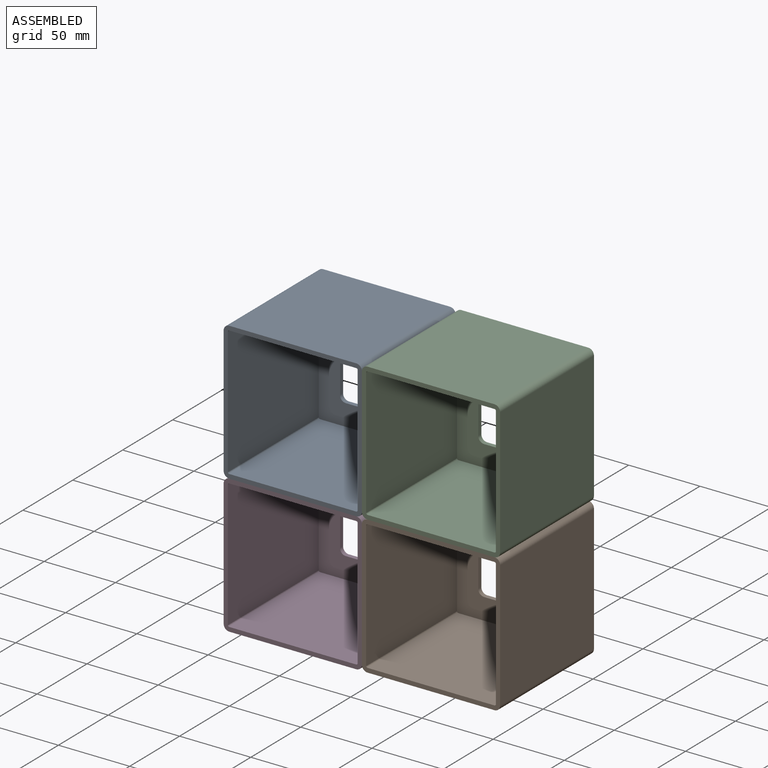
[diagram: assembled view]
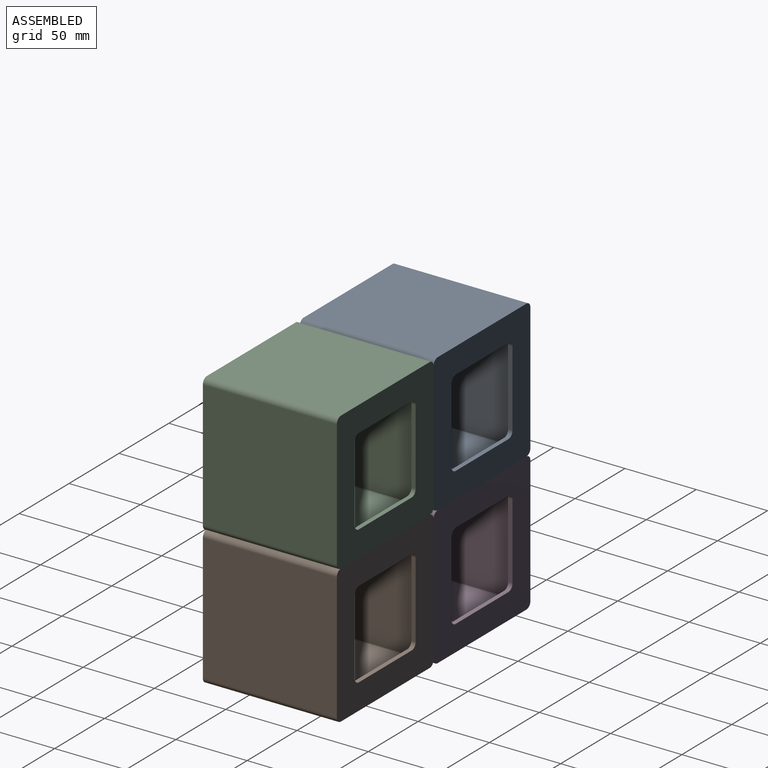
[diagram: assembled view, second angle]
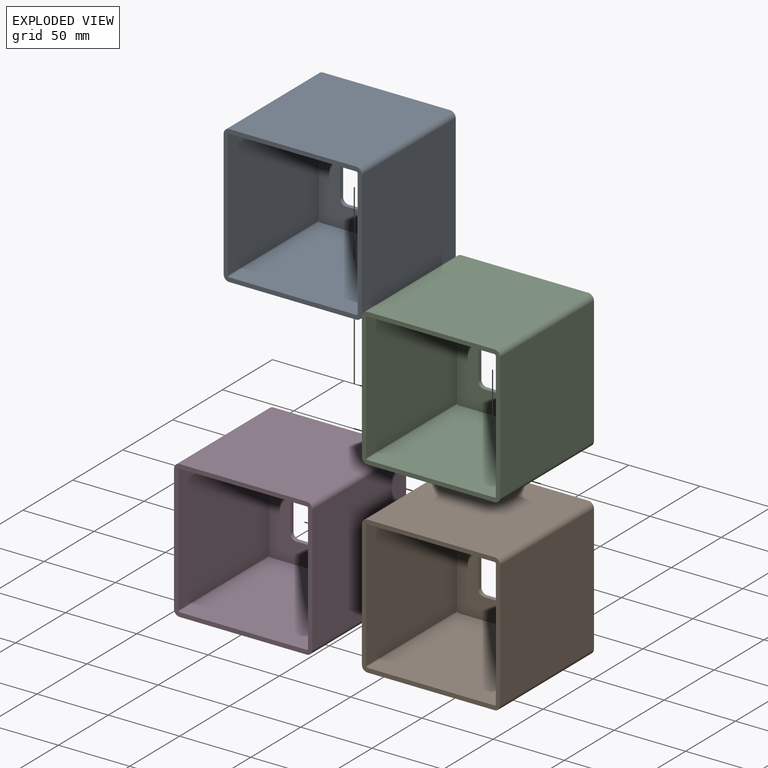
[diagram: exploded view]
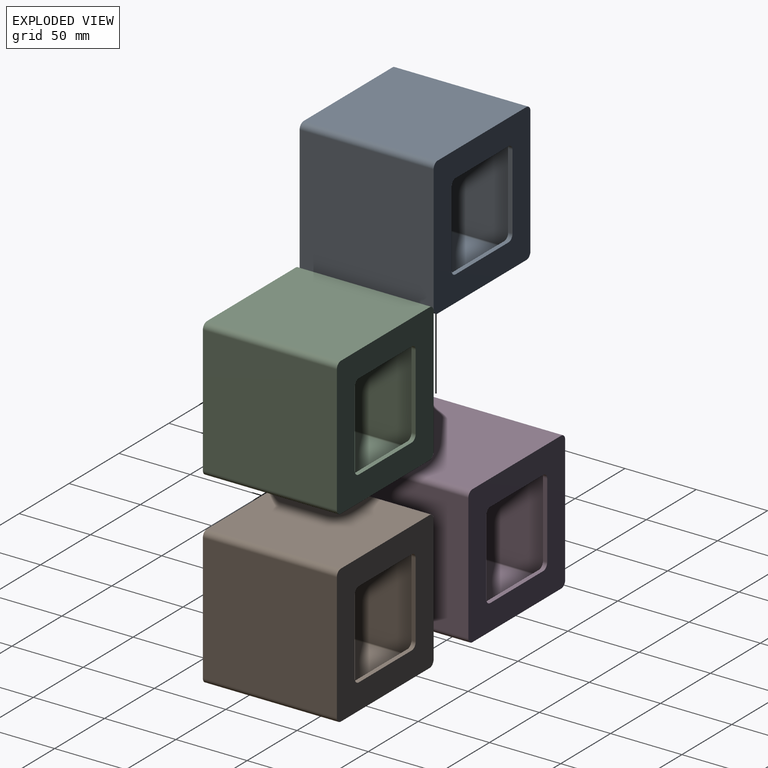
[diagram: exploded view, second angle]
ASSEMBLY  parts=4 mates=3
PART A: 27 faces, bbox 97x94x97 mm
  f0: plane 97x97mm, normal (0,-1,0), area 1115.1mm2, adj f1,f2,f3,f4,f6,f7,f8,f9
  f1: plane 94x89mm, normal (0,0,1), area 8366mm2, adj f0,f5,f11,f14
  f2: plane 94x89mm, normal (-1,0,0), area 8366mm2, adj f0,f5,f11,f12
  f3: plane 94x89mm, normal (0,0,-1), area 8366mm2, adj f0,f5,f12,f13
  f4: plane 94x89mm, normal (1,0,0), area 8366mm2, adj f0,f5,f13,f14
  f5: plane 97x97mm, normal (0,1,0), area 5688mm2, adj f1,f2,f3,f4,f11,f12,f13,f14
  f6: plane 91x89mm, normal (-1,0,0), area 8099mm2, adj f0,f10,f15,f18
  f7: plane 91x89mm, normal (0,0,-1), area 8099mm2, adj f0,f10,f15,f16
  f8: plane 91x89mm, normal (1,0,0), area 8099mm2, adj f0,f10,f16,f17
  f9: plane 91x89mm, normal (0,0,1), area 8099mm2, adj f0,f10,f17,f18
  f10: plane 91x91mm, normal (0,-1,0), area 4572.9mm2, adj f6,f7,f8,f9,f15,f16,f17,f18
  f11: cylinder r=4mm len=94mm, axis (0,-1,0), area 590.6mm2, adj f0,f1,f2,f5
  f12: cylinder r=4mm len=94mm, axis (0,1,0), area 590.6mm2, adj f0,f2,f3,f5
  f13: cylinder r=4mm len=94mm, axis (0,-1,0), area 590.6mm2, adj f0,f3,f4,f5
  f14: cylinder r=4mm len=94mm, axis (0,1,0), area 590.6mm2, adj f0,f1,f4,f5
  f15: cylinder r=1mm len=91mm, axis (0,-1,0), area 142.9mm2, adj f0,f6,f7,f10
  f16: cylinder r=1mm len=91mm, axis (0,1,0), area 142.9mm2, adj f0,f7,f8,f10
  f17: cylinder r=1mm len=91mm, axis (0,-1,0), area 142.9mm2, adj f0,f8,f9,f10
  f18: cylinder r=1mm len=91mm, axis (0,1,0), area 142.9mm2, adj f0,f6,f9,f10
  f19: plane 53x3mm, normal (0,0,-1), area 159mm2, adj f5,f10,f23,f26
  f20: plane 53x3mm, normal (1,0,0), area 159mm2, adj f5,f10,f23,f24
  f21: plane 53x3mm, normal (0,0,1), area 159mm2, adj f5,f10,f24,f25
  f22: plane 53x3mm, normal (-1,0,0), area 159mm2, adj f5,f10,f25,f26
  f23: cylinder r=4mm len=4mm, axis (0,1,0), area 18.8mm2, adj f5,f10,f19,f20
  f24: cylinder r=4mm len=4mm, axis (0,-1,0), area 18.8mm2, adj f5,f10,f20,f21
  f25: cylinder r=4mm len=4mm, axis (0,1,0), area 18.8mm2, adj f5,f10,f21,f22
  f26: cylinder r=4mm len=4mm, axis (0,-1,0), area 18.8mm2, adj f5,f10,f19,f22
PART B: same geometry as A
PART C: same geometry as A
PART D: same geometry as A
PLACE A rot(axis=(0,1,0),180deg) t=(141.85,69.1,38.5)mm
PLACE B rot(axis=(0,1,0),180deg) t=(238.85,69.1,-58.5)mm
PLACE C rot(axis=(0,1,0),180deg) t=(238.85,69.1,38.5)mm
PLACE D t=(141.85,69.1,-58.5)mm
MATE planar A.f1 <-> D.f1  axis (0,0,-1) through (141.85,22.1,-10)mm
MATE planar C.f1 <-> B.f3  axis (0,0,-1) through (238.85,22.1,-10)mm
MATE planar B.f4 <-> D.f4  axis (-1,0,0) through (190.35,22.1,-58.5)mm
